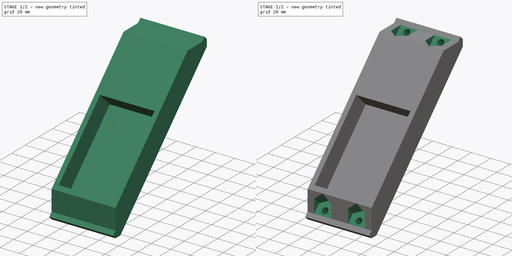
[diagram: build sequence overview — one tinted view per stage of 2, left to right]
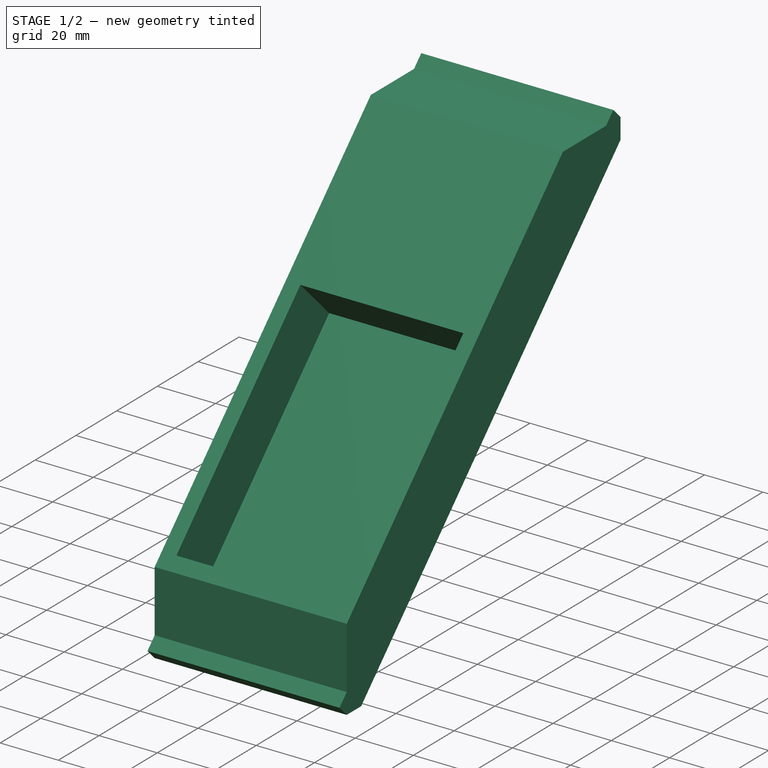
[diagram: stage 1 of 2 — iso view after this stage's code; geometry added in this stage tinted green]
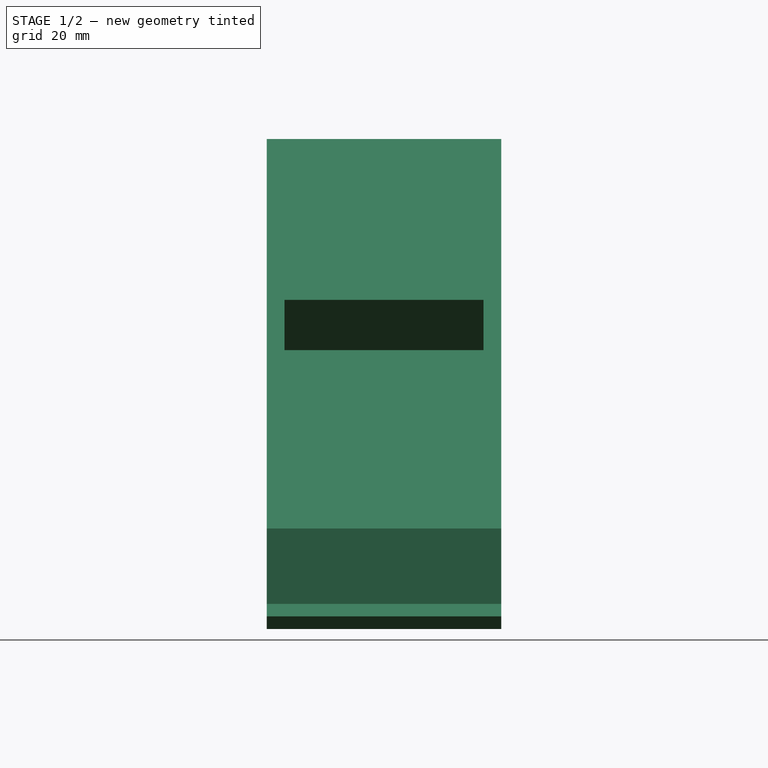
[diagram: stage 1 of 2 — front view after this stage's code; geometry added in this stage tinted green]
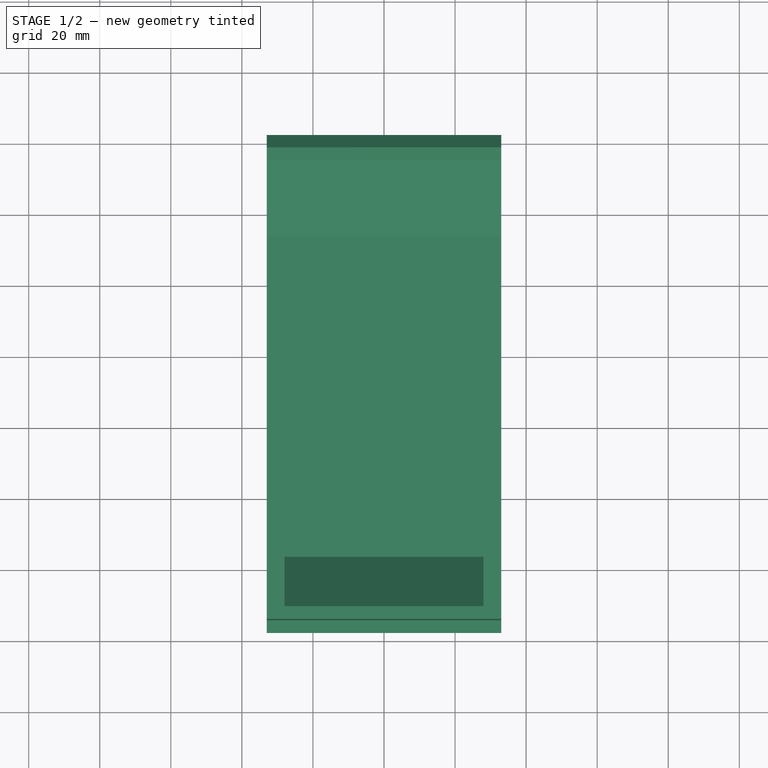
[diagram: stage 1 of 2 — top view after this stage's code; geometry added in this stage tinted green]
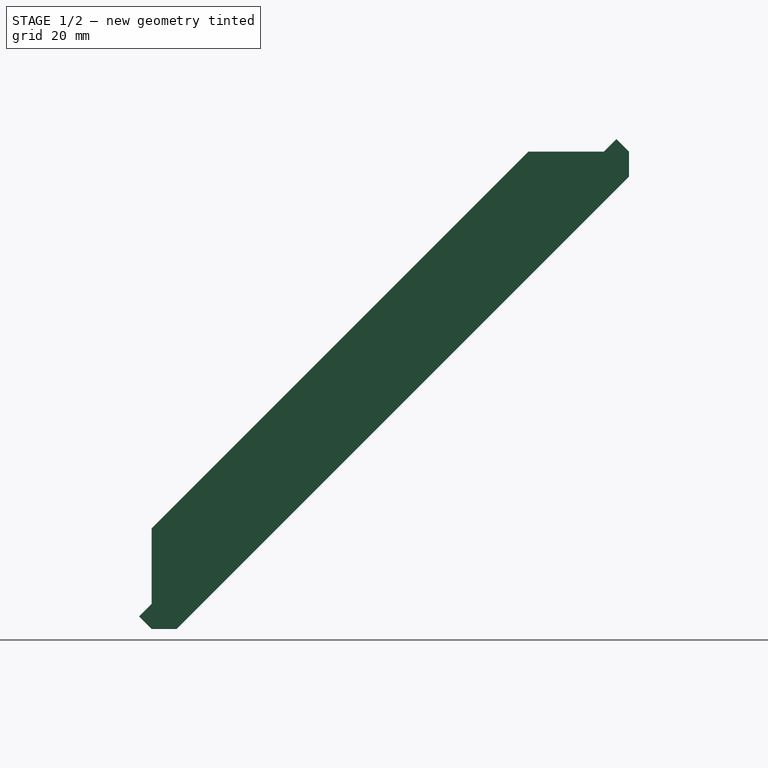
[diagram: stage 1 of 2 — right view after this stage's code; geometry added in this stage tinted green]
FCSTD DOCUMENT  (FreeCAD 0.21R33771 (Git))
Label: rpi_case_JB_070624
License: All rights reserved
LicenseURL: http://en.wikipedia.org/wiki/All_rights_reserved
objects: Sketcher::SketchObject×5, PartDesign::Pocket×3, PartDesign::Plane×2, PartDesign::Pad×1, PartDesign::Body×1
note: 16 computed .brp shape members not serialized (recipe doc carries the construction recipe); baked Part::Feature solids carry a one-line shape summary decoded from their .brp

FEATURE [PartDesign::Plane] DatumPlane
  AttachmentOffset = pos=(0,0,0) rot=(1,0,0;0.785398rad)
  Length = 89.4252
  MapMode = 2
  Placement = pos=(0,0,0) rot=(1,0,0;0.785398rad)
  ResizeMode = 0
  Support = -> [XY_Plane]
  Width = 231.281
FEATURE [Sketcher::SketchObject] Sketch001  label="Wall_Outline"
  FullyConstrained = true
  MapMode = 5
  Placement = pos=(0,0,0) rot=(1,0,0;0.785398rad)
  Support = -> [DatumPlane]
  sketch-geometry (10):
    g0: LineSegment StartX=-33 StartY=96 StartZ=0 EndX=-33 EndY=0 EndZ=0
    g1: LineSegment StartX=-33 StartY=0 StartZ=0 EndX=33 EndY=0 EndZ=0
    g2: LineSegment StartX=33 StartY=0 StartZ=0 EndX=33 EndY=96 EndZ=0
    g3: LineSegment StartX=33 StartY=96 StartZ=0 EndX=-33 EndY=96 EndZ=0
    g4: GeomPoint X=0 Y=48 Z=0
    g5: LineSegment StartX=28 StartY=5 StartZ=0 EndX=28 EndY=91 EndZ=0
    g6: LineSegment StartX=28 StartY=91 StartZ=0 EndX=-28 EndY=91 EndZ=0
    g7: LineSegment StartX=-28 StartY=91 StartZ=0 EndX=-28 EndY=5 EndZ=0
    g8: LineSegment StartX=-28 StartY=5 StartZ=0 EndX=28 EndY=5 EndZ=0
    g9: GeomPoint X=0 Y=48 Z=0
  constraints (26):
    c: Coincident(g0,g1)
    c: Coincident(g1,g2)
    c: Coincident(g2,g3)
    c: Coincident(g3,g0)
    c: Horizontal(g1)
    c: Horizontal(g3)
    c: Vertical(g0)
    c: Vertical(g2)
    c: Symmetric(g1,g0,g4)
    c: PointOnObject(g4,g-2)
    c: PointOnObject(g-1,g1)
    c: Coincident(g5,g6)
    c: Coincident(g6,g7)
    c: Coincident(g7,g8)
    c: Coincident(g8,g5)
    c: Horizontal(g6)
    c: Horizontal(g8)
    c: Vertical(g5)
    c: Vertical(g7)
    c: Symmetric(g6,g5,g9)
    c: PointOnObject(g9,g-2)
    c: DistanceY(g1,g5) = 5
    c: DistanceY(g5,g2) = 5
    c: DistanceX(g5,g2) = 5
    c: DistanceX(g6,g6) = 56
    c: DistanceY(g7,g7) = 86
FEATURE [Sketcher::SketchObject] Sketch  label="Side_Profile_Outline"
  FullyConstrained = true
  MapMode = 5
  Placement = pos=(0,0,0) rot=(0.57735,0.57735,0.57735;2.0944rad)
  Support = -> [YZ_Plane]
  sketch-geometry (4):
    g0: LineSegment StartX=0 StartY=0 StartZ=0 EndX=106.066 EndY=106.066 EndZ=0
    g1: LineSegment StartX=0 StartY=0 StartZ=0 EndX=-14.1421 EndY=14.1421 EndZ=0
    g2: LineSegment StartX=-14.1421 StartY=14.1421 StartZ=0 EndX=91.9239 EndY=120.208 EndZ=0
    g3: LineSegment StartX=106.066 StartY=106.066 StartZ=0 EndX=91.9239 EndY=120.208 EndZ=0
  constraints (11):
    c: Coincident(g0,g-1)
    c: Angle(g-1,g0) = 0.785398
    c: Coincident(g1,g0)
    c: Coincident(g2,g1)
    c: Coincident(g3,g0)
    c: Coincident(g2,g3)
    c: Parallel(g3,g1)
    c: Parallel(g2,g0)
    c: Angle(g0,g1) = 1.5708
    c: Distance(g3) = 20
    c: Distance(g0) = 150
FEATURE [Sketcher::SketchObject] Sketch002  label="Side_Profile_mnt_tab"
  ExternalGeometry = -> [DatumPlane]
  FullyConstrained = true
  MapMode = 5
  Placement = pos=(0,0,0) rot=(0.57735,0.57735,0.57735;2.0944rad)
  Support = -> [YZ_Plane]
  expr: Constraints[10] = Sketch.Constraints[10]
  expr: Constraints[1] = Sketch.Constraints[1]
  expr: Constraints[8] = Sketch.Constraints[8]
  expr: Constraints[9] = Sketch.Constraints[9]
  sketch-geometry (16):
    g0: LineSegment StartX=0 StartY=0 StartZ=0 EndX=106.066 EndY=106.066 EndZ=0
    g1: LineSegment StartX=0 StartY=0 StartZ=0 EndX=-14.1421 EndY=14.1421 EndZ=0
    g2: LineSegment StartX=-14.1421 StartY=14.1421 StartZ=0 EndX=91.9239 EndY=120.208 EndZ=0
    g3: LineSegment StartX=106.066 StartY=106.066 StartZ=0 EndX=91.9239 EndY=120.208 EndZ=0
    g4: LineSegment StartX=0 StartY=0 StartZ=0 EndX=-14.1421 EndY=-14.1421 EndZ=0
    g5: LineSegment StartX=106.066 StartY=106.066 StartZ=0 EndX=120.208 EndY=120.208 EndZ=0
    g6: LineSegment StartX=-14.1421 StartY=-14.1421 StartZ=0 EndX=-17.6777 EndY=-10.6066 EndZ=0
    g7: LineSegment StartX=-14.1421 StartY=-14.1421 StartZ=0 EndX=-7.07107 EndY=-14.1421 EndZ=0
    g8: LineSegment StartX=-7.07107 StartY=-14.1421 StartZ=0 EndX=120.208 EndY=113.137 EndZ=0
    g9: LineSegment StartX=120.208 StartY=120.208 StartZ=0 EndX=120.208 EndY=113.137 EndZ=0
    g10: LineSegment StartX=120.208 StartY=120.208 StartZ=0 EndX=116.673 EndY=123.744 EndZ=0
    g11: LineSegment StartX=91.9239 StartY=120.208 StartZ=0 EndX=113.137 EndY=120.208 EndZ=0
    g12: LineSegment StartX=113.137 StartY=120.208 StartZ=0 EndX=116.673 EndY=123.744 EndZ=0
    g13: LineSegment StartX=-17.6777 StartY=-10.6066 StartZ=0 EndX=-14.1421 EndY=-7.07107 EndZ=0
    g14: LineSegment StartX=-14.1421 StartY=-7.07107 StartZ=0 EndX=-14.1421 EndY=14.1421 EndZ=0
    g15: LineSegment StartX=106.066 StartY=106.066 StartZ=0 EndX=109.602 EndY=102.53 EndZ=0
  constraints (44):
    c: Coincident(g0,g-1)
    c: Angle(g-1,g0) = 0.785398
    c: Coincident(g1,g0)
    c: Coincident(g2,g1)
    c: Coincident(g3,g0)
    c: Coincident(g2,g3)
    c: Parallel(g3,g1)
    c: Parallel(g2,g0)
    c: Angle(g0,g1) = 1.5708
    c: Distance(g3) = 20
    c: Distance(g0) = 150
    c: Coincident(g4,g0)
    c: Coincident(g5,g0)
    c: Coincident(g6,g4)
    c: PointOnObject(g4,g-3)
    c: Perpendicular(g-3,g6)
    c: Coincident(g7,g4)
    c: Horizontal(g7)
    c: Coincident(g8,g7)
    c: Parallel(g-3,g8)
    c: Coincident(g9,g5)
    c: Coincident(g9,g8)
    c: Vertical(g9)
    c: Coincident(g10,g5)
    c: Perpendicular(g-3,g10)
    c: PointOnObject(g5,g-3)
    c: Coincident(g11,g2)
    c: Horizontal(g11)
    c: Coincident(g12,g11)
    c: Coincident(g12,g10)
    c: Parallel(g-3,g12)
    c: Coincident(g13,g6)
    c: Coincident(g14,g13)
    c: Coincident(g14,g1)
    c: Vertical(g14)
    c: Parallel(g13,g-3)
    c: Equal(g13,g12)
    c: Equal(g10,g6)
    c: Distance(g10) = 5
    c: Coincident(g15,g0)
    c: PointOnObject(g15,g8)
    c: Perpendicular(g15,g-3)
    c: Distance(g15) = 5
    c: Distance(g0,g5) = 20
FEATURE [PartDesign::Pad] Pad
  Direction = (1,-2e-16,3e-16)
  Length = 66
  Length2 = 10
  Midplane = true
  Placement = pos=(0,0,0) rot=(1,1,1;2.0944rad)
  Profile = -> Sketch002
  ReferenceAxis = -> Sketch002 [N_Axis]
  Type = 0
FEATURE [PartDesign::Pocket] Pocket
  BaseFeature = -> Pad
  Direction = (0,0.707107,-0.707107)
  Length = 9
  Length2 = 5
  Placement = pos=(0,0,0) rot=(1,1,1;2.0944rad)
  Profile = -> Sketch001
  ReferenceAxis = -> Sketch001 [N_Axis]
  Reversed = true
  Type = 1
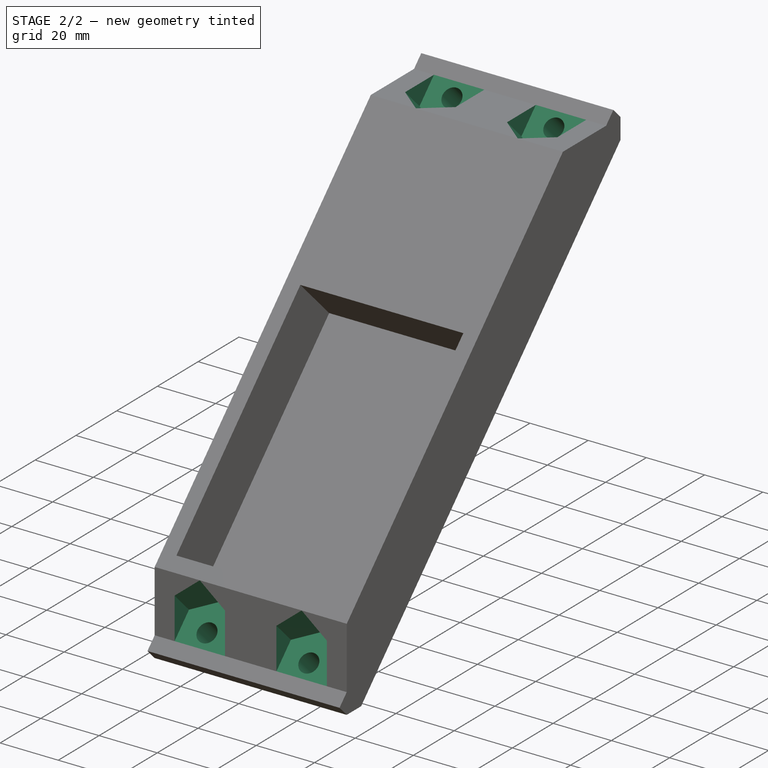
[diagram: stage 2 of 2 — iso view after this stage's code; geometry added in this stage tinted green]
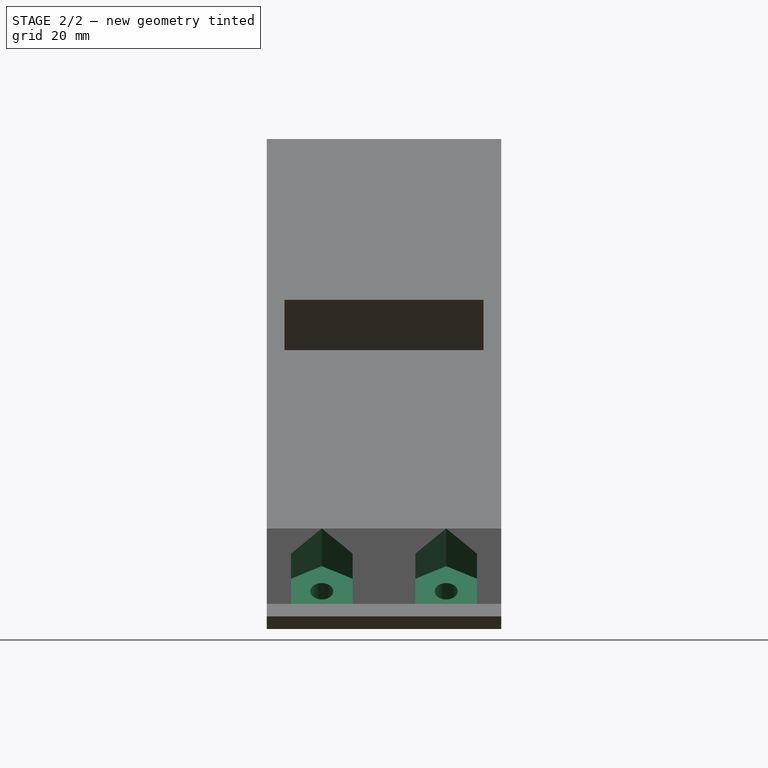
[diagram: stage 2 of 2 — front view after this stage's code; geometry added in this stage tinted green]
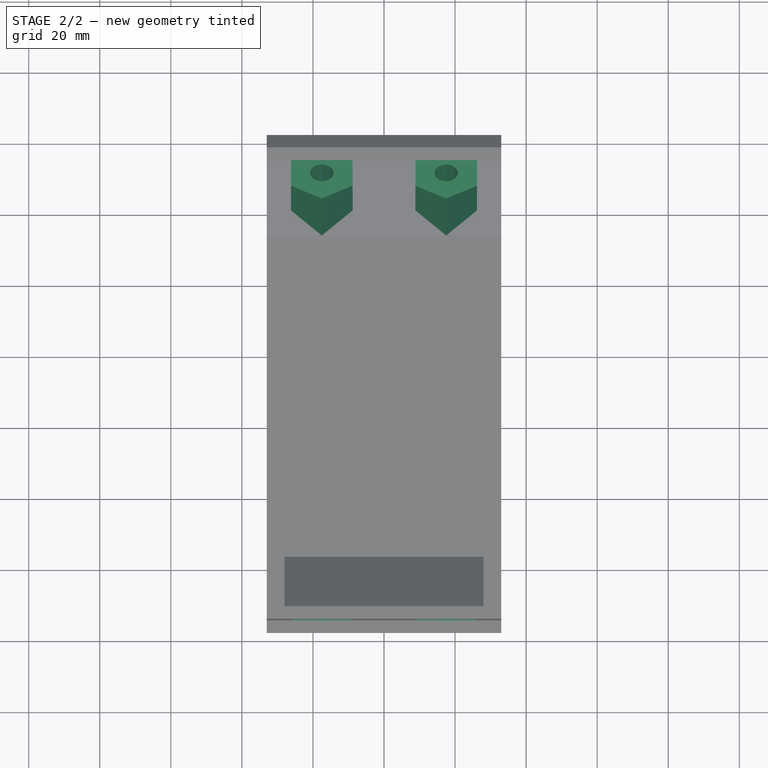
[diagram: stage 2 of 2 — top view after this stage's code; geometry added in this stage tinted green]
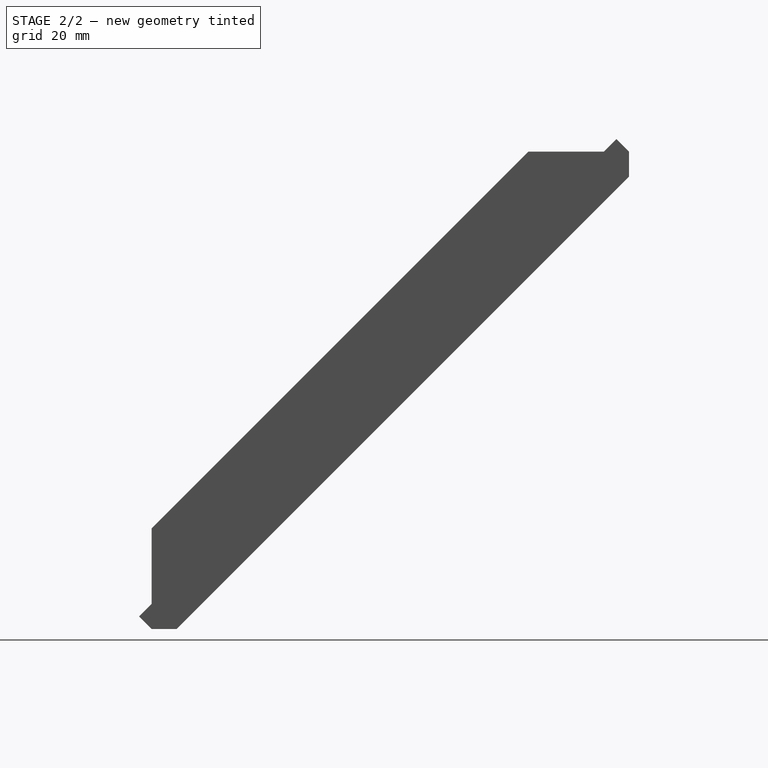
[diagram: stage 2 of 2 — right view after this stage's code; geometry added in this stage tinted green]
FEATURE [Sketcher::SketchObject] Sketch003  label="ExtMountThru"
  ExternalGeometry = -> [Pocket]
  FullyConstrained = true
  MapMode = 5
  Placement = pos=(0,0,0) rot=(1,0,0;0.785398rad)
  Support = -> [DatumPlane]
  sketch-geometry (14):
    g0: Circle CenterX=-17.5 CenterY=160 CenterZ=0 NormalX=0 NormalY=0 NormalZ=1 AngleXU=0 Radius=3.25
    g1: Circle CenterX=17.5 CenterY=160 CenterZ=0 NormalX=0 NormalY=0 NormalZ=1 AngleXU=0 Radius=3.25
    g2: LineSegment StartX=-17.5 StartY=160 StartZ=0 EndX=-9.59e-14 EndY=160 EndZ=0
    g3: LineSegment StartX=-9.59e-14 StartY=160 StartZ=0 EndX=17.5 EndY=160 EndZ=0
    g4: LineSegment StartX=-33 StartY=170 StartZ=0 EndX=33 EndY=150 EndZ=0
    g5: LineSegment StartX=-33 StartY=150 StartZ=0 EndX=33 EndY=170 EndZ=0
    g6: GeomPoint X=-9.59e-14 Y=160 Z=0
    g7: LineSegment StartX=-17.5 StartY=160 StartZ=0 EndX=-17.5 EndY=-10 EndZ=0
    g8: LineSegment StartX=-17.5 StartY=-10 StartZ=0 EndX=17.5 EndY=-10 EndZ=0
    g9: LineSegment StartX=17.5 StartY=-10 StartZ=0 EndX=17.5 EndY=160 EndZ=0
    g10: Circle CenterX=-17.5 CenterY=-10 CenterZ=0 NormalX=0 NormalY=0 NormalZ=1 AngleXU=0 Radius=3.25
    g11: Circle CenterX=17.5 CenterY=-10 CenterZ=0 NormalX=0 NormalY=0 NormalZ=1 AngleXU=0 Radius=3.25
    g12: LineSegment StartX=-9.59e-14 StartY=160 StartZ=0 EndX=-9.59e-14 EndY=150 EndZ=0
    g13: LineSegment StartX=0 StartY=0 StartZ=0 EndX=0 EndY=-10 EndZ=0
  constraints (34):
    c: Diameter(g1) = 6.5
    c: Equal(g1,g0)
    c: Coincident(g2,g0)
    c: Horizontal(g2)
    c: Coincident(g3,g2)
    c: Coincident(g3,g1)
    c: Horizontal(g3)
    c: Equal(g3,g2)
    c: Coincident(g4,g-4)
    c: Coincident(g4,g-3)
    c: Coincident(g5,g-3)
    c: Coincident(g5,g-4)
    c: PointOnObject(g6,g4)
    c: PointOnObject(g6,g5)
    c: Coincident(g2,g6)
    c: DistanceX(g0,g1) = 35
    c: Coincident(g7,g0)
    c: Vertical(g7)
    c: Coincident(g8,g7)
    c: Horizontal(g8)
    c: Coincident(g9,g8)
    c: Coincident(g9,g1)
    c: Vertical(g9)
    c: Coincident(g10,g7)
    c: Coincident(g11,g8)
    c: Equal(g1,g10)
    c: Equal(g1,g11)
    c: Coincident(g12,g2)
    c: PointOnObject(g12,g-3)
    c: Vertical(g12)
    c: Coincident(g13,g-1)
    c: PointOnObject(g13,g8)
    c: Vertical(g13)
    c: Equal(g13,g12)
FEATURE [PartDesign::Pocket] Pocket001
  BaseFeature = -> Pocket
  Direction = (0,0.707107,-0.707107)
  Length = 5
  Length2 = 5
  Midplane = true
  Placement = pos=(0,0,0) rot=(1,1,1;2.0944rad)
  Profile = -> Sketch003
  ReferenceAxis = -> Sketch003 [N_Axis]
  Type = 1
FEATURE [PartDesign::Plane] DatumPlane001
  AttachmentOffset = pos=(0,0,5) rot=(0,0,1;0rad)
  Length = 89.4252
  MapMode = 5
  Placement = pos=(0,-3.53553,3.53553) rot=(1,0,0;0.785398rad)
  ResizeMode = 0
  Support = -> [DatumPlane]
  Width = 231.281
FEATURE [Sketcher::SketchObject] Sketch004  label="ExtMountCounterbore"
  ExternalGeometry = -> [Pocket]
  FullyConstrained = true
  MapMode = 5
  Placement = pos=(0,-3.53553,3.53553) rot=(1,0,0;0.785398rad)
  Support = -> [DatumPlane001]
  expr: Constraints[0] = Sketch003.Constraints[0]
  expr: Constraints[15] = Sketch003.Constraints[15]
  sketch-geometry (42):
    g0: Circle CenterX=-17.5 CenterY=160 CenterZ=0 NormalX=0 NormalY=0 NormalZ=1 AngleXU=0 Radius=3.25
    g1: Circle CenterX=17.5 CenterY=160 CenterZ=0 NormalX=0 NormalY=0 NormalZ=1 AngleXU=0 Radius=3.25
    g2: LineSegment StartX=-17.5 StartY=160 StartZ=0 EndX=-9.59e-14 EndY=160 EndZ=0
    g3: LineSegment StartX=-9.59e-14 StartY=160 StartZ=0 EndX=17.5 EndY=160 EndZ=0
    g4: LineSegment StartX=-33 StartY=170 StartZ=0 EndX=33 EndY=150 EndZ=0
    g5: LineSegment StartX=-33 StartY=150 StartZ=0 EndX=33 EndY=170 EndZ=0
    g6: GeomPoint X=-9.59e-14 Y=160 Z=0
    g7: LineSegment StartX=-17.5 StartY=160 StartZ=0 EndX=-17.5 EndY=-10 EndZ=0
    g8: LineSegment StartX=-17.5 StartY=-10 StartZ=0 EndX=17.5 EndY=-10 EndZ=0
    g9: LineSegment StartX=17.5 StartY=-10 StartZ=0 EndX=17.5 EndY=160 EndZ=0
    g10: Circle CenterX=-17.5 CenterY=-10 CenterZ=0 NormalX=0 NormalY=0 NormalZ=1 AngleXU=0 Radius=3.25
    g11: Circle CenterX=17.5 CenterY=-10 CenterZ=0 NormalX=0 NormalY=0 NormalZ=1 AngleXU=0 Radius=3.25
    g12: LineSegment StartX=-9.59e-14 StartY=160 StartZ=0 EndX=-9.59e-14 EndY=150 EndZ=0
    g13: LineSegment StartX=0 StartY=0 StartZ=0 EndX=0 EndY=-10 EndZ=0
    g14: LineSegment StartX=-17.5 StartY=170 StartZ=0 EndX=-26.1603 EndY=165 EndZ=0
    g15: LineSegment StartX=-26.1603 StartY=165 StartZ=0 EndX=-26.1603 EndY=155 EndZ=0
    g16: LineSegment StartX=-26.1603 StartY=155 StartZ=0 EndX=-17.5 EndY=150 EndZ=0
    g17: LineSegment StartX=-17.5 StartY=150 StartZ=0 EndX=-8.83975 EndY=155 EndZ=0
    g18: LineSegment StartX=-8.83975 StartY=155 StartZ=0 EndX=-8.83975 EndY=165 EndZ=0
    g19: LineSegment StartX=-8.83975 StartY=165 StartZ=0 EndX=-17.5 EndY=170 EndZ=0
    g20: Circle CenterX=-17.5 CenterY=160 CenterZ=0 NormalX=0 NormalY=0 NormalZ=1 AngleXU=0 Radius=10
    g21: LineSegment StartX=17.5 StartY=170 StartZ=0 EndX=8.83975 EndY=165 EndZ=0
    g22: LineSegment StartX=8.83975 StartY=165 StartZ=0 EndX=8.83975 EndY=155 EndZ=0
    g23: LineSegment StartX=8.83975 StartY=155 StartZ=0 EndX=17.5 EndY=150 EndZ=0
    g24: LineSegment StartX=17.5 StartY=150 StartZ=0 EndX=26.1603 EndY=155 EndZ=0
    g25: LineSegment StartX=26.1603 StartY=155 StartZ=0 EndX=26.1603 EndY=165 EndZ=0
    g26: LineSegment StartX=26.1603 StartY=165 StartZ=0 EndX=17.5 EndY=170 EndZ=0
    g27: Circle CenterX=17.5 CenterY=160 CenterZ=0 NormalX=0 NormalY=0 NormalZ=1 AngleXU=0 Radius=10
    g28: LineSegment StartX=17.5 StartY=0 StartZ=0 EndX=8.83975 EndY=-5 EndZ=0
    g29: LineSegment StartX=8.83975 StartY=-5 StartZ=0 EndX=8.83975 EndY=-15 EndZ=0
    g30: LineSegment StartX=8.83975 StartY=-15 StartZ=0 EndX=17.5 EndY=-20 EndZ=0
    g31: LineSegment StartX=17.5 StartY=-20 StartZ=0 EndX=26.1603 EndY=-15 EndZ=0
    g32: LineSegment StartX=26.1603 StartY=-15 StartZ=0 EndX=26.1603 EndY=-5 EndZ=0
    g33: LineSegment StartX=26.1603 StartY=-5 StartZ=0 EndX=17.5 EndY=0 EndZ=0
    g34: Circle CenterX=17.5 CenterY=-10 CenterZ=0 NormalX=0 NormalY=0 NormalZ=1 AngleXU=0 Radius=10
    g35: LineSegment StartX=-17.5 StartY=0 StartZ=0 EndX=-26.1603 EndY=-5 EndZ=0
    g36: LineSegment StartX=-26.1603 StartY=-5 StartZ=0 EndX=-26.1603 EndY=-15 EndZ=0
    g37: LineSegment StartX=-26.1603 StartY=-15 StartZ=0 EndX=-17.5 EndY=-20 EndZ=0
    g38: LineSegment StartX=-17.5 StartY=-20 StartZ=0 EndX=-8.83975 EndY=-15 EndZ=0
    g39: LineSegment StartX=-8.83975 StartY=-15 StartZ=0 EndX=-8.83975 EndY=-5 EndZ=0
    g40: LineSegment StartX=-8.83975 StartY=-5 StartZ=0 EndX=-17.5 EndY=0 EndZ=0
    g41: Circle CenterX=-17.5 CenterY=-10 CenterZ=0 NormalX=0 NormalY=0 NormalZ=1 AngleXU=0 Radius=10
  constraints (98):
    c: Diameter(g1) = 6.5
    c: Equal(g1,g0)
    c: Coincident(g2,g0)
    c: Horizontal(g2)
    c: Coincident(g3,g2)
    c: Coincident(g3,g1)
    c: Horizontal(g3)
    c: Equal(g3,g2)
    c: Coincident(g4,g-4)
    c: Coincident(g4,g-3)
    c: Coincident(g5,g-3)
    c: Coincident(g5,g-4)
    c: PointOnObject(g6,g4)
    c: PointOnObject(g6,g5)
    c: Coincident(g2,g6)
    c: DistanceX(g0,g1) = 35
    c: Coincident(g7,g0)
    c: Vertical(g7)
    c: Coincident(g8,g7)
    c: Horizontal(g8)
    c: Coincident(g9,g8)
    c: Coincident(g9,g1)
    c: Vertical(g9)
    c: Coincident(g10,g7)
    c: Coincident(g11,g8)
    c: Equal(g1,g10)
    c: Equal(g1,g11)
    c: Coincident(g12,g2)
    c: PointOnObject(g12,g-3)
    c: Vertical(g12)
    c: Coincident(g13,g-1)
    c: PointOnObject(g13,g8)
    c: Vertical(g13)
    c: Equal(g13,g12)
    c: Coincident(g14,g15)
    c: Coincident(g15,g16)
    c: Coincident(g16,g17)
    c: Coincident(g17,g18)
    c: Coincident(g18,g19)
    c: Coincident(g19,g14)
    c: Equal(g14, g15-g19) x5
    c: PointOnObject(g14,g20)
    c: PointOnObject(g15,g20)
    c: PointOnObject(g16,g20)
    c: PointOnObject(g17,g20)
    c: PointOnObject(g18,g20)
    c: PointOnObject(g19,g20)
    c: Coincident(g20,g0)
    c: PointOnObject(g19,g-4)
    c: Coincident(g21,g22)
    c: Coincident(g22,g23)
    c: Coincident(g23,g24)
    c: Coincident(g24,g25)
    c: Coincident(g25,g26)
    c: Coincident(g26,g21)
    c: Equal(g21, g22-g26) x5
    c: PointOnObject(g21,g27)
    c: PointOnObject(g22,g27)
    c: PointOnObject(g23,g27)
    c: PointOnObject(g24,g27)
    c: PointOnObject(g25,g27)
    c: PointOnObject(g26,g27)
    c: Coincident(g27,g1)
    c: PointOnObject(g26,g-4)
    c: Coincident(g28,g29)
    c: Coincident(g29,g30)
    c: Coincident(g30,g31)
    c: Coincident(g31,g32)
    c: Coincident(g32,g33)
    c: Coincident(g33,g28)
    c: Equal(g28, g29-g33) x5
    c: PointOnObject(g28,g34)
    c: PointOnObject(g29,g34)
    c: PointOnObject(g30,g34)
    c: PointOnObject(g31,g34)
    c: PointOnObject(g32,g34)
    c: PointOnObject(g33,g34)
    c: Coincident(g34,g8)
    c: PointOnObject(g33,g-1)
    c: Coincident(g35,g36)
    c: Coincident(g36,g37)
    c: Coincident(g37,g38)
    c: Coincident(g38,g39)
    c: Coincident(g39,g40)
    c: Coincident(g40,g35)
    c: Equal(g35, g36-g40) x5
    c: PointOnObject(g35,g41)
    c: PointOnObject(g36,g41)
    c: PointOnObject(g37,g41)
    c: PointOnObject(g38,g41)
    c: PointOnObject(g39,g41)
    c: PointOnObject(g40,g41)
    c: Coincident(g41,g7)
    c: PointOnObject(g40,g-1)
    c: Vertical(g36)
    c: Vertical(g32)
    c: Vertical(g18)
    c: Vertical(g25)
FEATURE [PartDesign::Pocket] Pocket002
  BaseFeature = -> Pocket001
  Direction = (0,0.707107,-0.707107)
  Length = 5
  Length2 = 5
  Placement = pos=(0,0,0) rot=(1,1,1;2.0944rad)
  Profile = -> Sketch004
  ReferenceAxis = -> Sketch004 [N_Axis]
  Reversed = true
  Type = 1
FEATURE [PartDesign::Body] Body
  Group = -> [DatumPlane,Sketch001,Sketch,Sketch002,Pad,Pocket,Sketch003,Pocket001,Sketch004,DatumPlane001,Pocket002]
  Origin = -> Origin
  Tip = -> Pocket002
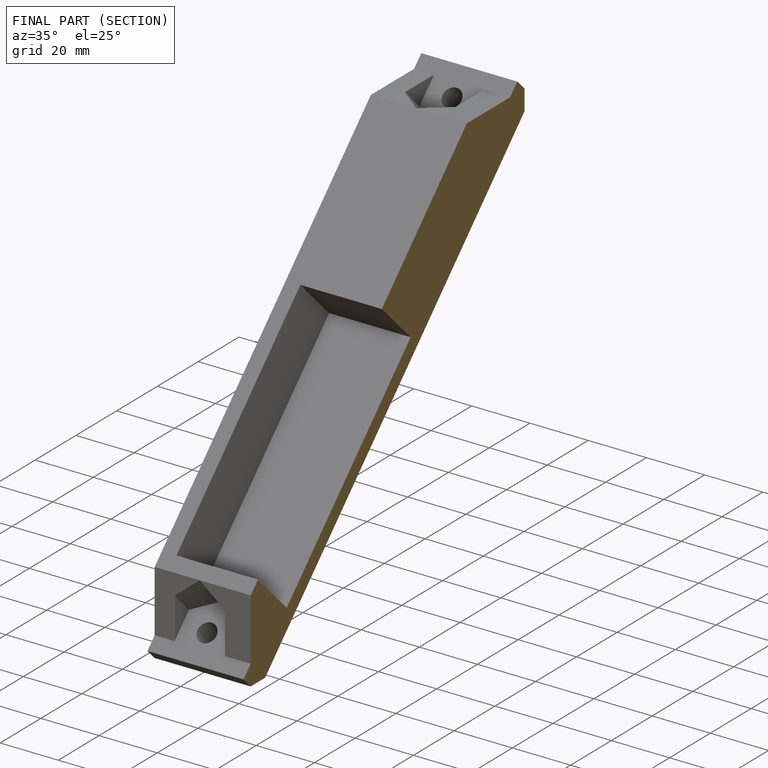
[diagram: finished part — half-section view (interior)]
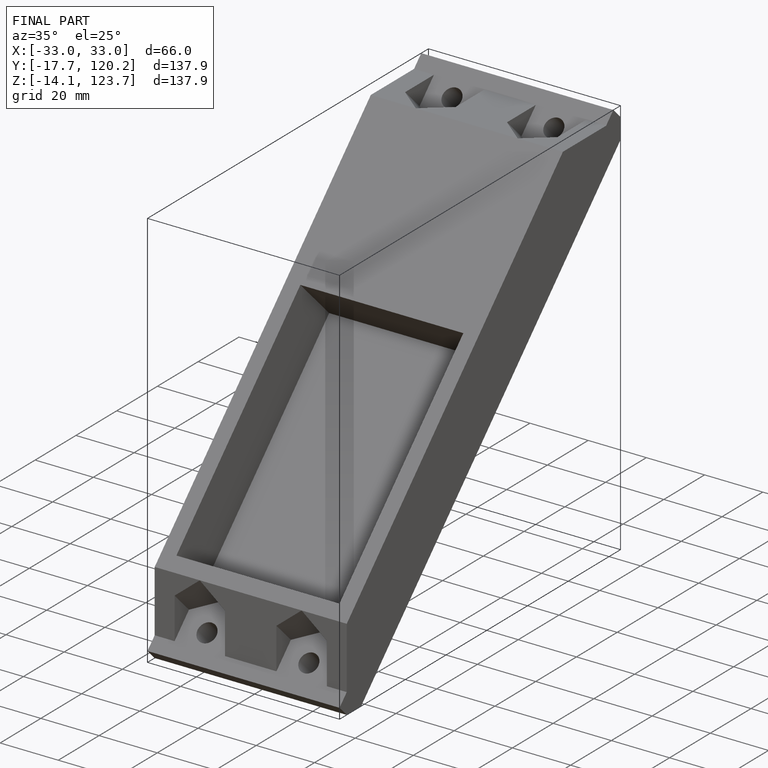
[diagram: finished part — iso view with bounding-box wireframe]
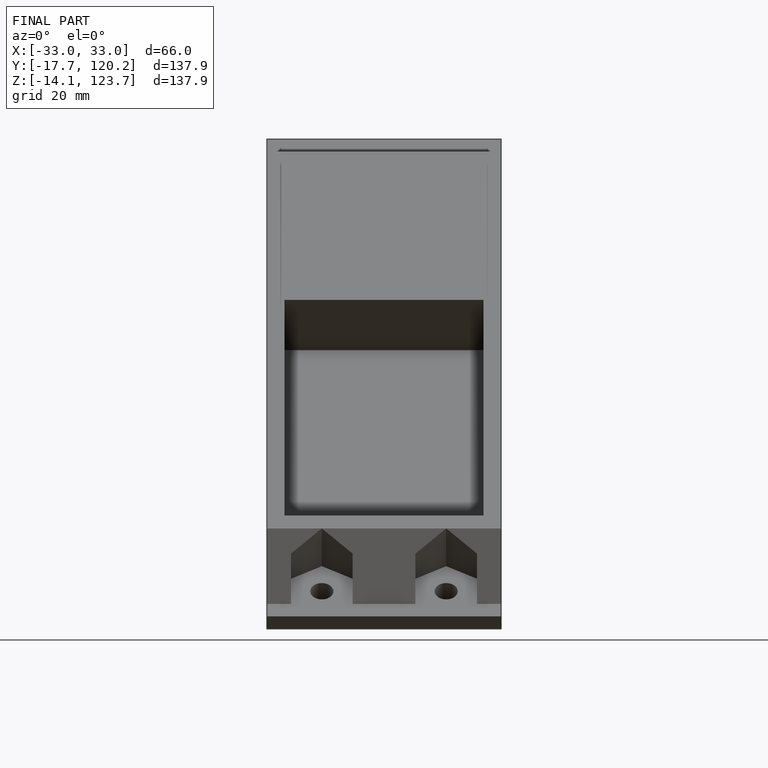
[diagram: finished part — front view with bounding-box wireframe]
